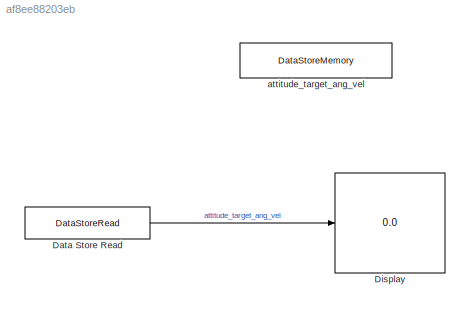
MODEL slx_af8ee88203eb
KIND model
CONFIG AbsTol = auto
CONFIG EnableMultiTasking = off
CONFIG FixedStep = auto
CONFIG MaxStep = auto
CONFIG MinStep = auto
CONFIG RelTol = 1e-3
CONFIG SampleTimeConstraint = Unconstrained
CONFIG Solver = VariableStepAuto
CONFIG SolverName = VariableStepAuto
CONFIG StartTime = 0.0
CONFIG StopTime = 10.0
BLOCK [DataStoreRead] Data Store Read
  DataStoreName = attitude_target_ang_vel
  Ports = [0, 1]
BLOCK [Display] Display
  Decimation = 1
  Ports = [1]
BLOCK [DataStoreMemory] attitude_target_ang_vel
  DataStoreName = attitude_target_ang_vel
  InitialValue = attitude_target_ang_vel
  ReadBeforeWriteMsg = warning
  ShowAdditionalParam = off
  WriteAfterReadMsg = warning
  WriteAfterWriteMsg = warning
LINE Data Store Read:1 -> Display:1
